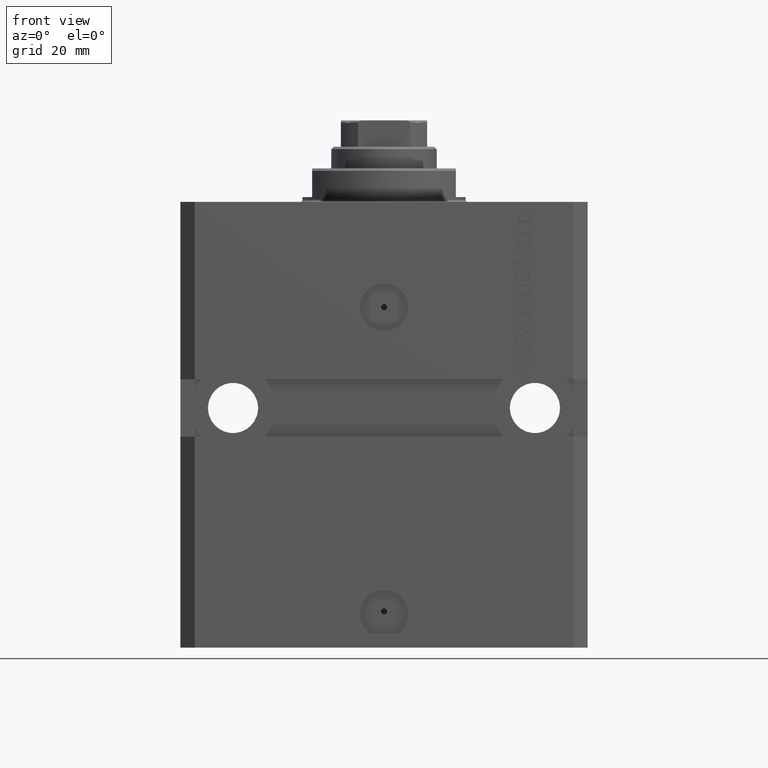
[diagram: clean part render]
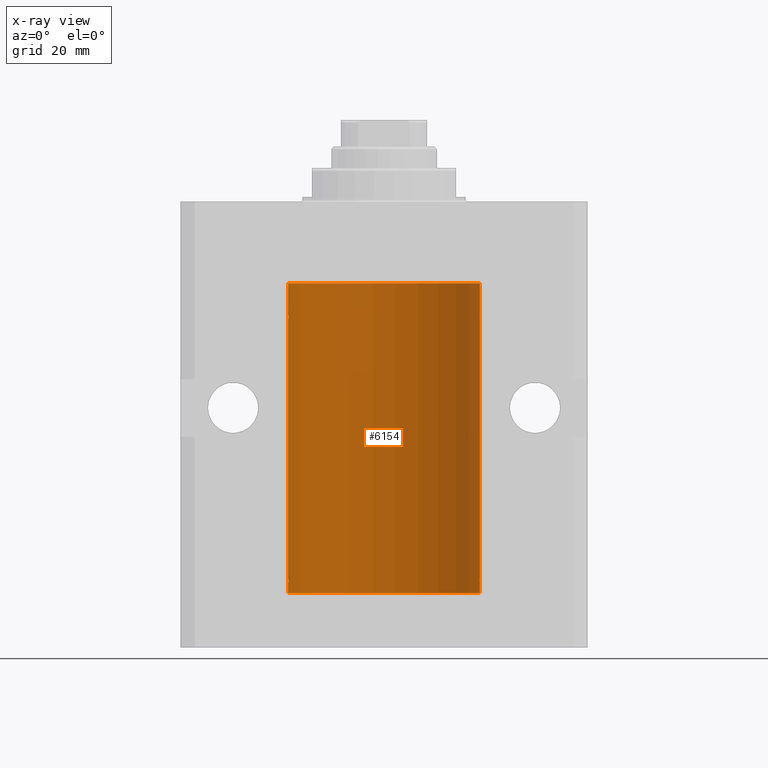
[diagram: x-ray — body ghosted, one internal face saturated and labeled with its STEP entity id]
A machine part, front view, then the same camera in x-ray: the body is ghosted and one INTERNAL B-rep face — a face not visible from any outside direction — is saturated and labeled: STEP entity #6154.
In plain terms, the highlighted cylindrical surface (partial cylindrical patch) has radius 20 mm, axis along (0, 0, 1).
Its self-contained STEP definition (entity closure, byte-faithful):
#46 = VERTEX_POINT ( 'NONE', #38618 ) ;
#68 = CARTESIAN_POINT ( 'NONE',  ( -19.99256581701871482, 0.5573276956902001311, -23.67348565770948809 ) ) ;
#519 = DIRECTION ( 'NONE',  ( -0.000000000000000000, -0.000000000000000000, 1.000000000000000000 ) ) ;
#890 = CARTESIAN_POINT ( 'NONE',  ( 19.99023198964909298, 0.6250000000081574747, -78.99999999999911893 ) ) ;
#1208 = EDGE_LOOP ( 'NONE', ( #16055, #43916, #40804, #18528, #13369, #11638, #45050, #14549, #3115, #25435, #15193, #39722, #1531, #20864 ) ) ;
#1531 = ORIENTED_EDGE ( 'NONE', *, *, #2011, .F. ) ;
#1536 = CARTESIAN_POINT ( 'NONE',  ( 20.00000000000000000, 0.000000000000000000, -81.59999999999999432 ) ) ;
#2011 = EDGE_CURVE ( 'NONE', #7814, #37987, #16229, .T. ) ;
#2107 = CARTESIAN_POINT ( 'NONE',  ( 19.99023198964909298, 0.6250000000081574747, -78.99999999999911893 ) ) ;
#2412 = CARTESIAN_POINT ( 'NONE',  ( -19.99023018003212471, 0.6250578794725522025, -79.16284809704971792 ) ) ;
#2471 = CARTESIAN_POINT ( 'NONE',  ( 19.99947351343144675, 0.1636818329565319363, -24.60872855715643936 ) ) ;
#2974 = CARTESIAN_POINT ( 'NONE',  ( 19.99638788807192924, 0.3844440352705359998, -79.49948058986481669 ) ) ;
#2989 = CARTESIAN_POINT ( 'NONE',  ( 20.00000000000010303, 3.555666352936568165E-13, -78.37499999999667466 ) ) ;
#3115 = ORIENTED_EDGE ( 'NONE', *, *, #5867, .T. ) ;
#3410 = CARTESIAN_POINT ( 'NONE',  ( 20.00000000000000000, 0.000000000000000000, -81.59999999999999432 ) ) ;
#3513 = CARTESIAN_POINT ( 'NONE',  ( -19.99999999999999645, 0.08259581631026780002, -23.37500000000000000 ) ) ;
#3563 = CARTESIAN_POINT ( 'NONE',  ( 19.99023198964935588, 0.6249999999995746736, -23.83696384779806721 ) ) ;
#3782 = B_SPLINE_CURVE_WITH_KNOTS ( 'NONE', 3,
 ( #21159, #3513, #17505, #7419, #31462, #68, #14069, #28026, #42033, #21376, #35360, #10633 ),
 .UNSPECIFIED., .F., .F.,
 ( 4, 2, 2, 2, 2, 4 ),
 ( 5.848927291235706941E-19, 0.0002442693137305304075, 0.0004885386274610601645, 0.0009770772549221123059, 0.001465615882383164339, 0.001954154509844215938 ),
 .UNSPECIFIED. ) ;
#3953 = LINE ( 'NONE', #32132, #34027 ) ;
#4656 = VERTEX_POINT ( 'NONE', #37574 ) ;
#4762 = CARTESIAN_POINT ( 'NONE',  ( -20.00000000000010303, 3.580159278407742946E-13, -24.62500000000332889 ) ) ;
#5180 = CARTESIAN_POINT ( 'NONE',  ( -19.99766197842594551, 0.3150331617867603295, -78.45402070102504410 ) ) ;
#5811 = EDGE_CURVE ( 'NONE', #12505, #14425, #42011, .T. ) ;
#5867 = EDGE_CURVE ( 'NONE', #41032, #36970, #19587, .T. ) ;
#5871 = CARTESIAN_POINT ( 'NONE',  ( -20.00000000000010303, 3.580159286679549072E-13, -79.62500000000332534 ) ) ;
#5916 = CARTESIAN_POINT ( 'NONE',  ( 0.000000000000000000, 0.000000000000000000, -17.00000000000000000 ) ) ;
#5923 = CARTESIAN_POINT ( 'NONE',  ( 19.99766100389832957, 0.3150982863324730543, -24.54594438241278453 ) ) ;
#6154 = ADVANCED_FACE ( 'NONE', ( #9454 ), #16319, .F. ) ;
#6462 = CARTESIAN_POINT ( 'NONE',  ( 19.99023198964936299, 0.6249999999995806688, -78.83696384779808852 ) ) ;
#6581 = CARTESIAN_POINT ( 'NONE',  ( 19.99769474220010679, 0.3253030616682399678, -23.44140633897632142 ) ) ;
#7149 = VERTEX_POINT ( 'NONE', #8264 ) ;
#7233 = DIRECTION ( 'NONE',  ( -0.000000000000000000, -0.000000000000000000, 1.000000000000000000 ) ) ;
#7419 = CARTESIAN_POINT ( 'NONE',  ( -19.99766197842594906, 0.3150331617867667688, -23.45402070102505476 ) ) ;
#7814 = VERTEX_POINT ( 'NONE', #15491 ) ;
#8113 = EDGE_CURVE ( 'NONE', #41771, #37987, #3782, .T. ) ;
#8264 = CARTESIAN_POINT ( 'NONE',  ( 20.00000000000010303, 3.555666352936568165E-13, -78.37499999999667466 ) ) ;
#8454 = DIRECTION ( 'NONE',  ( -0.000000000000000000, -0.000000000000000000, 1.000000000000000000 ) ) ;
#9135 = CARTESIAN_POINT ( 'NONE',  ( 19.99256353007439202, 0.5574106582031151946, -24.32639035180115172 ) ) ;
#9298 = CARTESIAN_POINT ( 'NONE',  ( 20.00000000000000000, 0.000000000000000000, -17.00000000000000000 ) ) ;
#9406 = CARTESIAN_POINT ( 'NONE',  ( -20.00000000000000000, -2.867584836844214272E-15, -23.37500000000000000 ) ) ;
#9453 = CARTESIAN_POINT ( 'NONE',  ( 19.99999999999999645, 0.1631318418333158327, -78.37500000000015632 ) ) ;
#9454 = FACE_OUTER_BOUND ( 'NONE', #1208, .T. ) ;
#9525 = EDGE_CURVE ( 'NONE', #12505, #40742, #18960, .T. ) ;
#9544 = EDGE_CURVE ( 'NONE', #36970, #46, #45037, .T. ) ;
#9880 = CARTESIAN_POINT ( 'NONE',  ( 20.00000000000000000, -4.058908006348821872E-15, -79.62500000000000000 ) ) ;
#9926 = VERTEX_POINT ( 'NONE', #12744 ) ;
#10037 = CARTESIAN_POINT ( 'NONE',  ( 19.99023198964909298, 0.6250000000081508134, -23.99999999999910472 ) ) ;
#10633 = CARTESIAN_POINT ( 'NONE',  ( -20.00000000000010303, 3.580159278407742946E-13, -24.62500000000332889 ) ) ;
#11356 = AXIS2_PLACEMENT_3D ( 'NONE', #5916, #23979, #13453 ) ;
#11638 = ORIENTED_EDGE ( 'NONE', *, *, #16203, .T. ) ;
#12505 = VERTEX_POINT ( 'NONE', #3410 ) ;
#12744 = CARTESIAN_POINT ( 'NONE',  ( -20.00000000000010303, 3.580159286679549072E-13, -79.62500000000332534 ) ) ;
#13238 = CARTESIAN_POINT ( 'NONE',  ( 19.99023198964933812, 0.6250000000002681189, -24.16311014829328130 ) ) ;
#13369 = ORIENTED_EDGE ( 'NONE', *, *, #17473, .T. ) ;
#13453 = DIRECTION ( 'NONE',  ( 1.000000000000000000, 0.000000000000000000, 0.000000000000000000 ) ) ;
#14069 = CARTESIAN_POINT ( 'NONE',  ( -19.99023380173166231, 0.6249420416828462832, -23.83670793056396064 ) ) ;
#14201 = AXIS2_PLACEMENT_3D ( 'NONE', #33945, #36701, #40160 ) ;
#14425 = VERTEX_POINT ( 'NONE', #35271 ) ;
#14549 = ORIENTED_EDGE ( 'NONE', *, *, #38229, .T. ) ;
#14719 = CARTESIAN_POINT ( 'NONE',  ( 20.00000000000000000, -4.058908006348821872E-15, -79.62500000000000000 ) ) ;
#15193 = ORIENTED_EDGE ( 'NONE', *, *, #37157, .F. ) ;
#15491 = CARTESIAN_POINT ( 'NONE',  ( -20.00000000000000000, -1.124177324826063808E-14, -78.37500000000000000 ) ) ;
#16055 = ORIENTED_EDGE ( 'NONE', *, *, #29058, .F. ) ;
#16203 = EDGE_CURVE ( 'NONE', #7149, #22030, #24620, .T. ) ;
#16228 = CARTESIAN_POINT ( 'NONE',  ( 19.99999999999999645, 0.08261455565447869964, -24.62499999999998579 ) ) ;
#16229 = LINE ( 'NONE', #40076, #39712 ) ;
#16319 = CYLINDRICAL_SURFACE ( 'NONE', #14201, 20.00000000000000000 ) ;
#16669 = CARTESIAN_POINT ( 'NONE',  ( 19.99638788807192924, 0.3844440352705356112, -24.49948058986480603 ) ) ;
#16959 = CARTESIAN_POINT ( 'NONE',  ( 19.99256353007439202, 0.5574106582031174151, -79.32639035180115172 ) ) ;
#17473 = EDGE_CURVE ( 'NONE', #26959, #7149, #18079, .T. ) ;
#17505 = CARTESIAN_POINT ( 'NONE',  ( -19.99947377218718714, 0.1636439183262877461, -23.39126364004656011 ) ) ;
#18079 = B_SPLINE_CURVE_WITH_KNOTS ( 'NONE', 3,
 ( #2107, #6462, #33507, #34396, #9453, #2989 ),
 .UNSPECIFIED., .F., .F.,
 ( 4, 2, 4 ),
 ( 0.0009772989342736221503, 0.001465726722058849005, 0.001954154509844075859 ),
 .UNSPECIFIED. ) ;
#18528 = ORIENTED_EDGE ( 'NONE', *, *, #34343, .T. ) ;
#18891 = DIRECTION ( 'NONE',  ( 1.000000000000000000, 0.000000000000000000, 0.000000000000000000 ) ) ;
#18960 = LINE ( 'NONE', #1536, #39910 ) ;
#19140 = CARTESIAN_POINT ( 'NONE',  ( -20.00000000000000000, -1.124177324826063808E-14, -78.37500000000000000 ) ) ;
#19278 = LINE ( 'NONE', #22931, #30807 ) ;
#19351 = DIRECTION ( 'NONE',  ( -0.000000000000000000, -0.000000000000000000, 1.000000000000000000 ) ) ;
#19377 = CARTESIAN_POINT ( 'NONE',  ( -19.99999999999999289, 0.08259581631026131909, -78.37499999999998579 ) ) ;
#19587 = LINE ( 'NONE', #27106, #32459 ) ;
#19790 = B_SPLINE_CURVE_WITH_KNOTS ( 'NONE', 3,
 ( #21000, #3563, #20769, #6581, #20543, #24419 ),
 .UNSPECIFIED., .F., .F.,
 ( 4, 2, 4 ),
 ( 0.0009772989342736214998, 0.001465726722058845102, 0.001954154509844068920 ),
 .UNSPECIFIED. ) ;
#19828 = CARTESIAN_POINT ( 'NONE',  ( -19.99638934703457238, 0.3843678041337651452, -78.50046362978099523 ) ) ;
#20406 = CARTESIAN_POINT ( 'NONE',  ( 19.99947351343144319, 0.1636818329565372654, -79.60872855715646779 ) ) ;
#20543 = CARTESIAN_POINT ( 'NONE',  ( 19.99999999999999645, 0.1631318418333146114, -23.37500000000016698 ) ) ;
#20769 = CARTESIAN_POINT ( 'NONE',  ( 19.99253733128256272, 0.5586305947778931191, -23.67476036735258305 ) ) ;
#20864 = ORIENTED_EDGE ( 'NONE', *, *, #44245, .T. ) ;
#21000 = CARTESIAN_POINT ( 'NONE',  ( 19.99023198964909298, 0.6250000000081508134, -23.99999999999910472 ) ) ;
#21159 = CARTESIAN_POINT ( 'NONE',  ( -20.00000000000000000, -2.867584836844214272E-15, -23.37500000000000000 ) ) ;
#21376 = CARTESIAN_POINT ( 'NONE',  ( -19.99769349528941120, 0.3253804398728645242, -24.55855820727680339 ) ) ;
#21973 = CARTESIAN_POINT ( 'NONE',  ( 19.99023198964934167, 0.6250000000002757794, -79.16311014829327064 ) ) ;
#22030 = VERTEX_POINT ( 'NONE', #27381 ) ;
#22931 = CARTESIAN_POINT ( 'NONE',  ( -20.00000000000000000, 2.449293598294706513E-15, -81.59999999999999432 ) ) ;
#23034 = CARTESIAN_POINT ( 'NONE',  ( -19.99253506710754991, 0.5587120480776742726, -79.32511620830248944 ) ) ;
#23093 = CARTESIAN_POINT ( 'NONE',  ( 20.00000000000000000, 1.042771508482559297E-15, -24.62500000000000000 ) ) ;
#23391 = DIRECTION ( 'NONE',  ( -0.000000000000000000, -0.000000000000000000, 1.000000000000000000 ) ) ;
#23979 = DIRECTION ( 'NONE',  ( 0.000000000000000000, 0.000000000000000000, 1.000000000000000000 ) ) ;
#24273 = B_SPLINE_CURVE_WITH_KNOTS ( 'NONE', 3,
 ( #9880, #37847, #20406, #34383, #2974, #16959, #21973, #890 ),
 .UNSPECIFIED., .F., .F.,
 ( 4, 2, 2, 4 ),
 ( 3.944467879762244826E-18, 0.0002443247335684012008, 0.0004886494671367983900, 0.0009772989342736221503 ),
 .UNSPECIFIED. ) ;
#24419 = CARTESIAN_POINT ( 'NONE',  ( 20.00000000000010303, 3.555666340528858977E-13, -23.37499999999667111 ) ) ;
#24620 = LINE ( 'NONE', #38624, #39977 ) ;
#24681 = DIRECTION ( 'NONE',  ( 0.000000000000000000, 0.000000000000000000, 1.000000000000000000 ) ) ;
#25435 = ORIENTED_EDGE ( 'NONE', *, *, #9544, .T. ) ;
#26959 = VERTEX_POINT ( 'NONE', #30909 ) ;
#27106 = CARTESIAN_POINT ( 'NONE',  ( 20.00000000000000000, 0.000000000000000000, -81.59999999999999432 ) ) ;
#27381 = CARTESIAN_POINT ( 'NONE',  ( 20.00000000000000000, 1.042771508482559297E-15, -24.62500000000000000 ) ) ;
#28026 = CARTESIAN_POINT ( 'NONE',  ( -19.99023018003212471, 0.6250578794725500931, -24.16284809704970371 ) ) ;
#28610 = CARTESIAN_POINT ( 'NONE',  ( 20.00000000000010303, 3.555666340528858977E-13, -23.37499999999667111 ) ) ;
#29058 = EDGE_CURVE ( 'NONE', #14425, #9926, #19278, .T. ) ;
#29493 = DIRECTION ( 'NONE',  ( -0.000000000000000000, -0.000000000000000000, 1.000000000000000000 ) ) ;
#29908 = CARTESIAN_POINT ( 'NONE',  ( -19.99947377218718003, 0.1636439183262797525, -78.39126364004653169 ) ) ;
#30807 = VECTOR ( 'NONE', #23391, 1000.000000000000000 ) ;
#30909 = CARTESIAN_POINT ( 'NONE',  ( 19.99023198964909298, 0.6250000000081574747, -78.99999999999911893 ) ) ;
#31276 = EDGE_CURVE ( 'NONE', #22030, #4656, #31587, .T. ) ;
#31462 = CARTESIAN_POINT ( 'NONE',  ( -19.99638934703457593, 0.3843678041337688644, -23.50046362978100944 ) ) ;
#31587 = B_SPLINE_CURVE_WITH_KNOTS ( 'NONE', 3,
 ( #23093, #16228, #2471, #5923, #16669, #9135, #13238, #10037 ),
 .UNSPECIFIED., .F., .F.,
 ( 4, 2, 2, 4 ),
 ( 1.013370767385449693E-18, 0.0002443247335684061339, 0.0004886494671368111836, 0.0009772989342736214998 ),
 .UNSPECIFIED. ) ;
#32132 = CARTESIAN_POINT ( 'NONE',  ( -20.00000000000000000, 2.449293598294706513E-15, -81.59999999999999432 ) ) ;
#32459 = VECTOR ( 'NONE', #19351, 1000.000000000000000 ) ;
#33507 = CARTESIAN_POINT ( 'NONE',  ( 19.99253733128256627, 0.5586305947779004466, -78.67476036735259015 ) ) ;
#33945 = CARTESIAN_POINT ( 'NONE',  ( 0.000000000000000000, 0.000000000000000000, -81.59999999999999432 ) ) ;
#34027 = VECTOR ( 'NONE', #519, 1000.000000000000000 ) ;
#34030 = CARTESIAN_POINT ( 'NONE',  ( -20.00000000000000355, 0.1631688615953343080, -79.62499999999984368 ) ) ;
#34343 = EDGE_CURVE ( 'NONE', #40742, #26959, #24273, .T. ) ;
#34383 = CARTESIAN_POINT ( 'NONE',  ( 19.99766100389833312, 0.3150982863324784944, -79.54594438241281296 ) ) ;
#34396 = CARTESIAN_POINT ( 'NONE',  ( 19.99769474220011034, 0.3253030616682413001, -78.44140633897630721 ) ) ;
#35271 = CARTESIAN_POINT ( 'NONE',  ( -20.00000000000000000, 2.449293598294706513E-15, -81.59999999999999432 ) ) ;
#35360 = CARTESIAN_POINT ( 'NONE',  ( -20.00000000000000000, 0.1631688615953320320, -24.62499999999985434 ) ) ;
#36701 = DIRECTION ( 'NONE',  ( -0.000000000000000000, -0.000000000000000000, 1.000000000000000000 ) ) ;
#36970 = VERTEX_POINT ( 'NONE', #9298 ) ;
#37027 = CARTESIAN_POINT ( 'NONE',  ( -19.99769349528941831, 0.3253804398728615266, -79.55855820727680339 ) ) ;
#37157 = EDGE_CURVE ( 'NONE', #41771, #46, #3953, .T. ) ;
#37260 = CARTESIAN_POINT ( 'NONE',  ( -19.99256581701871838, 0.5573276956901996870, -78.67348565770949165 ) ) ;
#37574 = CARTESIAN_POINT ( 'NONE',  ( 19.99023198964909298, 0.6250000000081508134, -23.99999999999910472 ) ) ;
#37847 = CARTESIAN_POINT ( 'NONE',  ( 19.99999999999999645, 0.08261455565447825555, -79.62499999999997158 ) ) ;
#37987 = VERTEX_POINT ( 'NONE', #4762 ) ;
#38229 = EDGE_CURVE ( 'NONE', #4656, #41032, #19790, .T. ) ;
#38460 = CARTESIAN_POINT ( 'NONE',  ( 0.000000000000000000, 0.000000000000000000, -81.59999999999999432 ) ) ;
#38618 = CARTESIAN_POINT ( 'NONE',  ( -20.00000000000000000, 2.449293598294706513E-15, -17.00000000000000000 ) ) ;
#38624 = CARTESIAN_POINT ( 'NONE',  ( 20.00000000000000000, 0.000000000000000000, -81.59999999999999432 ) ) ;
#39712 = VECTOR ( 'NONE', #8454, 1000.000000000000000 ) ;
#39722 = ORIENTED_EDGE ( 'NONE', *, *, #8113, .T. ) ;
#39910 = VECTOR ( 'NONE', #29493, 1000.000000000000000 ) ;
#39977 = VECTOR ( 'NONE', #7233, 1000.000000000000000 ) ;
#40076 = CARTESIAN_POINT ( 'NONE',  ( -20.00000000000000000, 2.449293598294706513E-15, -81.59999999999999432 ) ) ;
#40160 = DIRECTION ( 'NONE',  ( 1.000000000000000000, 0.000000000000000000, 0.000000000000000000 ) ) ;
#40535 = AXIS2_PLACEMENT_3D ( 'NONE', #38460, #24681, #18891 ) ;
#40742 = VERTEX_POINT ( 'NONE', #14719 ) ;
#40804 = ORIENTED_EDGE ( 'NONE', *, *, #9525, .T. ) ;
#41032 = VERTEX_POINT ( 'NONE', #28610 ) ;
#41771 = VERTEX_POINT ( 'NONE', #9406 ) ;
#42011 = CIRCLE ( 'NONE', #40535, 20.00000000000000000 ) ;
#42033 = CARTESIAN_POINT ( 'NONE',  ( -19.99253506710754991, 0.5587120480776751608, -24.32511620830248589 ) ) ;
#43837 = B_SPLINE_CURVE_WITH_KNOTS ( 'NONE', 3,
 ( #19140, #19377, #29908, #5180, #19828, #37260, #43915, #2412, #23034, #37027, #34030, #5871 ),
 .UNSPECIFIED., .F., .F.,
 ( 4, 2, 2, 2, 2, 4 ),
 ( 1.522880481566060999E-18, 0.0002442693137305179392, 0.0004885386274610343605, 0.0009770772549220966934, 0.001465615882383158918, 0.001954154509844221576 ),
 .UNSPECIFIED. ) ;
#43915 = CARTESIAN_POINT ( 'NONE',  ( -19.99023380173166231, 0.6249420416828449509, -78.83670793056396064 ) ) ;
#43916 = ORIENTED_EDGE ( 'NONE', *, *, #5811, .F. ) ;
#44245 = EDGE_CURVE ( 'NONE', #7814, #9926, #43837, .T. ) ;
#45037 = CIRCLE ( 'NONE', #11356, 20.00000000000000000 ) ;
#45050 = ORIENTED_EDGE ( 'NONE', *, *, #31276, .T. ) ;